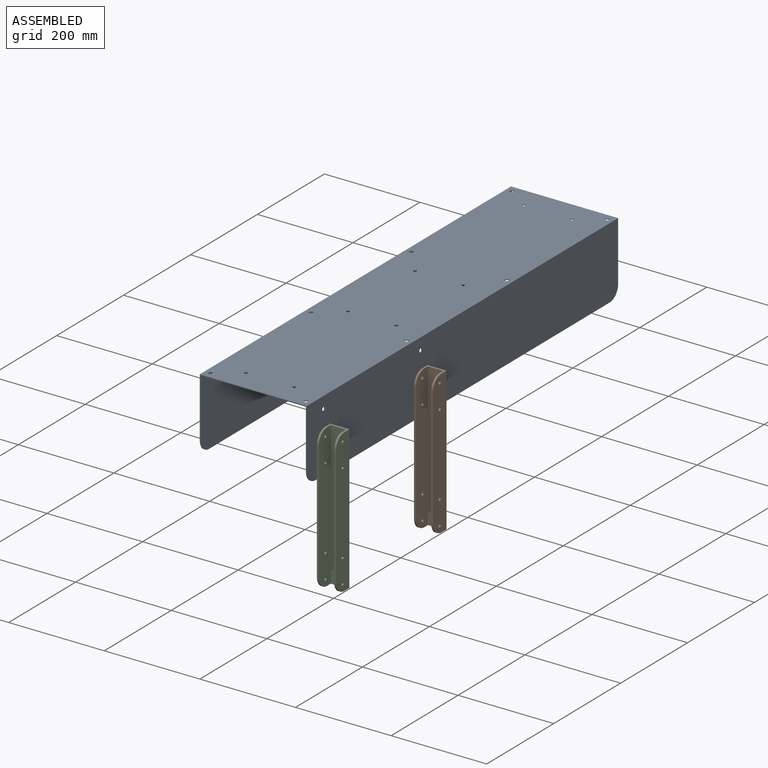
[diagram: assembled view]
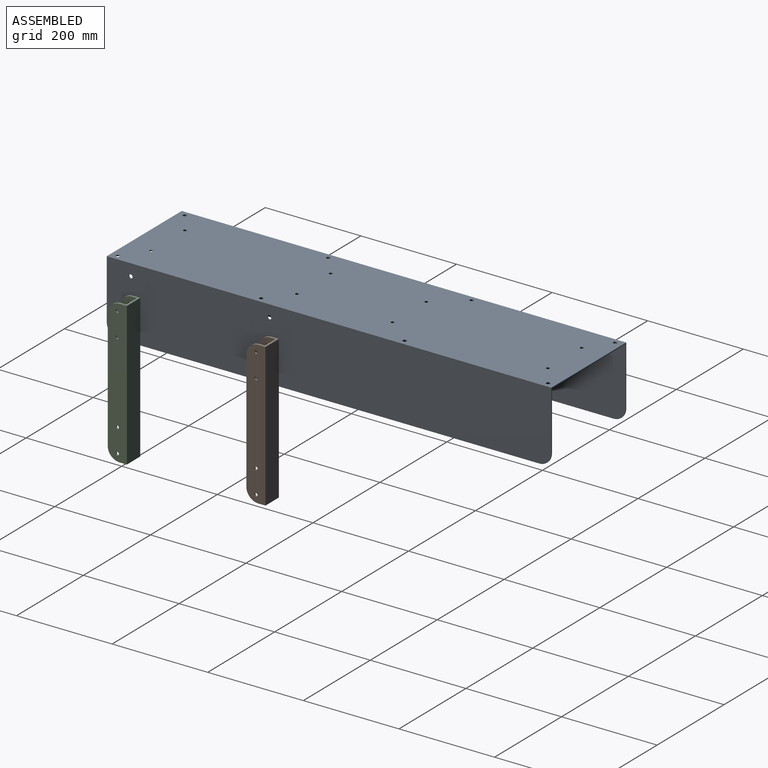
[diagram: assembled view, second angle]
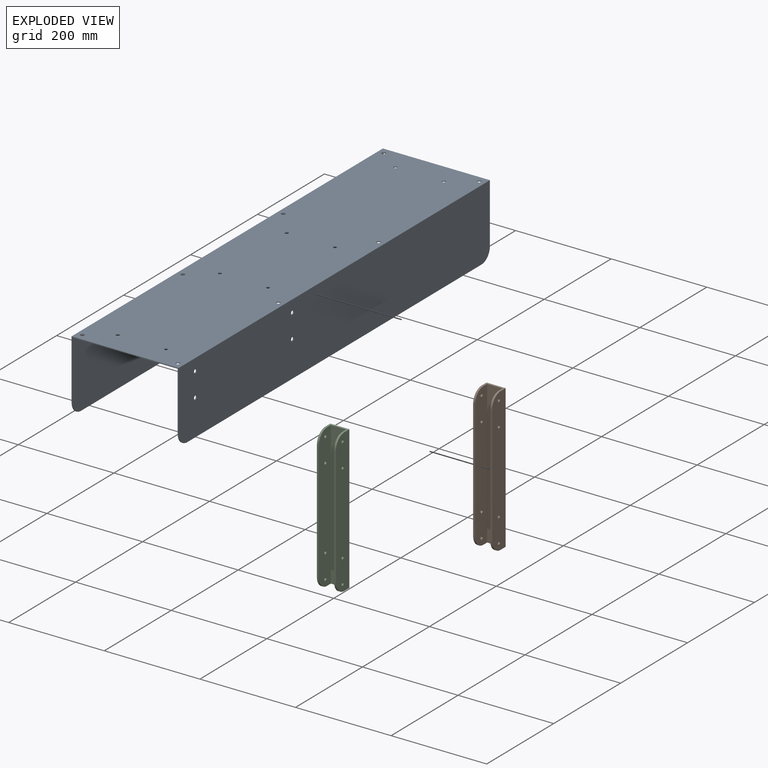
[diagram: exploded view]
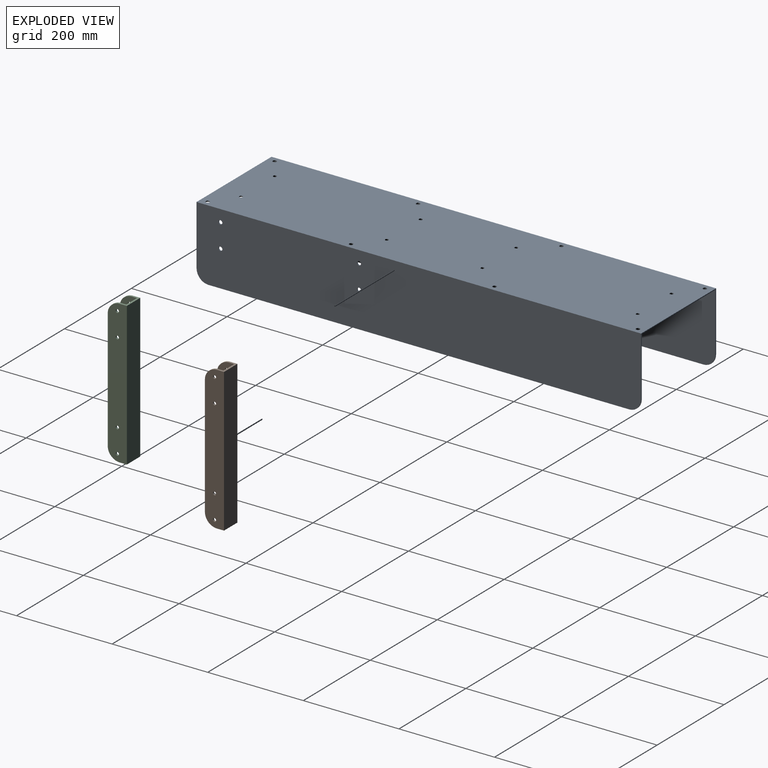
[diagram: exploded view, second angle]
ASSEMBLY  parts=3 mates=2
PART A: 34 faces, bbox 224x930x150 mm
  f0: plane 930x224mm, normal (0,0,1), area 207610mm2, adj f1,f7,f8,f9,f10,f11,f12,f13
  f1: plane 930x150mm, normal (-1,0,0), area 139231.7mm2, adj f0,f2,f8,f9,f19,f21
  f2: plane 880x2mm, normal (0,0,-1), area 1760mm2, adj f1,f3,f19,f21
  f3: plane 930x148mm, normal (1,0,0), area 137371.7mm2, adj f2,f4,f8,f9,f19,f21
  f4: plane 930x220mm, normal (0,0,-1), area 203890mm2, adj f3,f5,f8,f9,f10,f11,f12,f13
  f5: plane 930x148mm, normal (-1,0,0), area 137170.7mm2, adj f4,f6,f8,f9,f18,f20,f22,f23
  f6: plane 880x2mm, normal (0,0,-1), area 1760mm2, adj f5,f7,f18,f20
  f7: plane 930x150mm, normal (1,0,0), area 139030.7mm2, adj f0,f6,f8,f9,f18,f20,f22,f23
  f8: plane 224x125mm, normal (0,-1,0), area 940mm2, adj f0,f1,f3,f4,f5,f7,f20,f21
  f9: plane 224x125mm, normal (0,1,0), area 940mm2, adj f0,f1,f3,f4,f5,f7,f18,f19
  f10: cylinder r=4mm len=8mm, axis (0,0,1), area 50.3mm2, adj f0,f4
  f11: cylinder r=4mm len=8mm, axis (0,0,1), area 50.3mm2, adj f0,f4
  f12: cylinder r=4mm len=8mm, axis (0,0,1), area 50.3mm2, adj f0,f4
  f13: cylinder r=4mm len=8mm, axis (0,0,1), area 50.3mm2, adj f0,f4
  f14: cylinder r=4mm len=8mm, axis (0,0,1), area 50.3mm2, adj f0,f4
  f15: cylinder r=4mm len=8mm, axis (0,0,1), area 50.3mm2, adj f0,f4
  f16: cylinder r=4mm len=8mm, axis (0,0,1), area 50.3mm2, adj f0,f4
  f17: cylinder r=4mm len=8mm, axis (0,0,1), area 50.3mm2, adj f0,f4
  f18: cylinder r=25mm len=25mm, axis (1,0,0), area 78.5mm2, adj f5,f6,f7,f9
  f19: cylinder r=25mm len=25mm, axis (1,0,0), area 78.5mm2, adj f1,f2,f3,f9
  f20: cylinder r=25mm len=25mm, axis (-1,0,0), area 78.5mm2, adj f5,f6,f7,f8
  f21: cylinder r=25mm len=25mm, axis (-1,0,0), area 78.5mm2, adj f1,f2,f3,f8
  f22: cylinder r=4mm len=8mm, axis (1,0,0), area 50.3mm2, adj f5,f7
  f23: cylinder r=4mm len=8mm, axis (1,0,0), area 50.3mm2, adj f5,f7
  f24: cylinder r=4mm len=8mm, axis (1,0,0), area 50.3mm2, adj f5,f7
  f25: cylinder r=4mm len=8mm, axis (1,0,0), area 50.3mm2, adj f5,f7
  f26: cylinder r=3.5mm len=7mm, axis (0,0,1), area 44mm2, adj f0,f4
  f27: cylinder r=3.5mm len=7mm, axis (0,0,1), area 44mm2, adj f0,f4
  f28: cylinder r=3.5mm len=7mm, axis (0,0,1), area 44mm2, adj f0,f4
  f29: cylinder r=3.5mm len=7mm, axis (0,0,1), area 44mm2, adj f0,f4
  f30: cylinder r=3.5mm len=7mm, axis (0,0,1), area 44mm2, adj f0,f4
  f31: cylinder r=3.5mm len=7mm, axis (0,0,1), area 44mm2, adj f0,f4
  f32: cylinder r=3.5mm len=7mm, axis (0,0,1), area 44mm2, adj f0,f4
  f33: cylinder r=3.5mm len=7mm, axis (0,0,1), area 44mm2, adj f0,f4
PART B: 22 faces, bbox 40x300x40 mm
  f0: plane 300x40mm, normal (-1,0,0), area 11586.5mm2, adj f1,f7,f8,f9,f13,f14,f15,f17
  f1: plane 250x4mm, normal (0,0,-1), area 1000mm2, adj f0,f2,f19,f21
  f2: plane 300x36mm, normal (1,0,0), area 10386.5mm2, adj f1,f3,f8,f9,f13,f14,f15,f17
  f3: plane 300x32mm, normal (0,0,-1), area 9600mm2, adj f2,f4,f8,f9
  f4: plane 300x36mm, normal (-1,0,0), area 10386.5mm2, adj f3,f5,f8,f9,f10,f11,f12,f16
  f5: plane 250x4mm, normal (0,0,-1), area 1000mm2, adj f4,f6,f18,f20
  f6: plane 300x40mm, normal (1,0,0), area 11586.5mm2, adj f5,f7,f8,f9,f10,f11,f12,f16
  f7: plane 300x40mm, normal (0,0,1), area 12000mm2, adj f0,f6,f8,f9
  f8: plane 40x15mm, normal (0,-1,0), area 248mm2, adj f0,f2,f3,f4,f6,f7,f20,f21
  f9: plane 40x15mm, normal (0,1,0), area 248mm2, adj f0,f2,f3,f4,f6,f7,f18,f19
  f10: cylinder r=3.4mm len=6.8mm, axis (1,0,0), area 85.5mm2, adj f4,f6
  f11: cylinder r=3.4mm len=6.8mm, axis (1,0,0), area 85.5mm2, adj f4,f6
  f12: cylinder r=3.4mm len=6.8mm, axis (1,0,0), area 85.5mm2, adj f4,f6
  f13: cylinder r=3.4mm len=6.8mm, axis (1,0,0), area 85.5mm2, adj f0,f2
  f14: cylinder r=3.4mm len=6.8mm, axis (1,0,0), area 85.5mm2, adj f0,f2
  f15: cylinder r=3.4mm len=6.8mm, axis (1,0,0), area 85.5mm2, adj f0,f2
  f16: cylinder r=3.4mm len=6.8mm, axis (1,0,0), area 85.5mm2, adj f4,f6
  f17: cylinder r=3.4mm len=6.8mm, axis (1,0,0), area 85.5mm2, adj f0,f2
  f18: cylinder r=25mm len=25mm, axis (1,0,0), area 157.1mm2, adj f4,f5,f6,f9
  f19: cylinder r=25mm len=25mm, axis (1,0,0), area 157.1mm2, adj f0,f1,f2,f9
  f20: cylinder r=25mm len=25mm, axis (-1,0,0), area 157.1mm2, adj f4,f5,f6,f8
  f21: cylinder r=25mm len=25mm, axis (-1,0,0), area 157.1mm2, adj f0,f1,f2,f8
PART C: same geometry as B
PLACE A t=(-150.33,482.55,11.97)mm
PLACE B rot(axis=(-1,0,0),90deg) t=(52.46,-155.74,-176.8)mm
PLACE C rot(axis=(-1,0,0),90deg) t=(52.46,-445.74,-176.8)mm
MATE fastened A.f24 <-> C.f12  axis (1,0,0) through (-23.1,-397.45,108.2)mm
MATE fastened B.f12 <-> A.f23  axis (-1,0,0) through (-23.1,-107.45,108.2)mm
